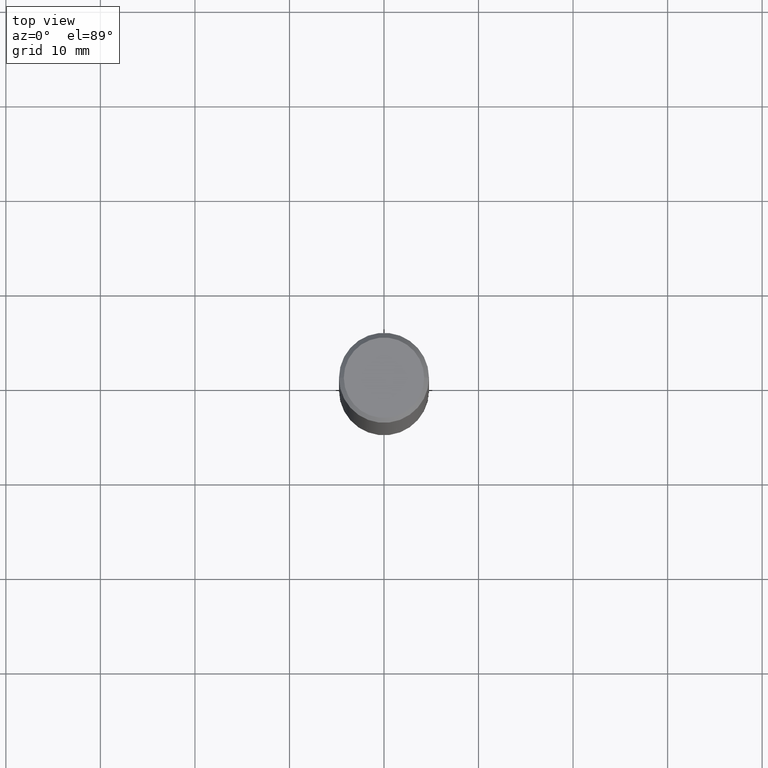
[diagram: clean part render]
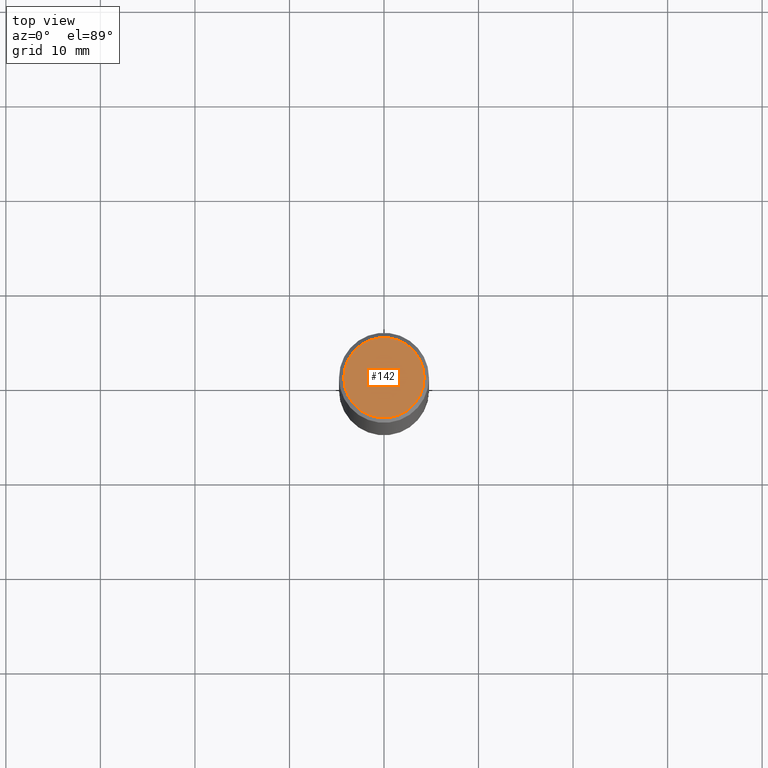
[diagram: same view with one face highlighted and labeled with its STEP entity id]
A machine part, top view. The second image highlights one B-rep face of the part: STEP entity #142.
In plain terms, the highlighted planar face has unit normal (0, -0, -1).
Its self-contained STEP definition (entity closure, byte-faithful):
#12 = DIRECTION ( 'NONE',  ( 1.000000000000000000, -6.982962677686265922E-15, 4.875936752492899929E-29 ) ) ;
#26 = CARTESIAN_POINT ( 'NONE',  ( -1.043851414335219820E-46, 1.490343170380447200E-32, 4.268512490100411279E-18 ) ) ;
#27 = DIRECTION ( 'NONE',  ( 1.000000000000000000, -6.982962677686265922E-15, 4.875936752492899929E-29 ) ) ;
#31 = VERTEX_POINT ( 'NONE', #328 ) ;
#44 = EDGE_LOOP ( 'NONE', ( #248, #137 ) ) ;
#67 = VERTEX_POINT ( 'NONE', #208 ) ;
#71 = DIRECTION ( 'NONE',  ( -2.445468806185136597E-29, 3.491481338843145583E-15, 1.000000000000000000 ) ) ;
#91 = DIRECTION ( 'NONE',  ( 2.438088387897960049E-29, -3.491481338843145188E-15, -1.000000000000000000 ) ) ;
#102 = CIRCLE ( 'NONE', #342, 0.1674999999999997602 ) ;
#108 = AXIS2_PLACEMENT_3D ( 'NONE', #26, #337, #27 ) ;
#120 = CARTESIAN_POINT ( 'NONE',  ( -1.043851414335219820E-46, 1.490343170380447200E-32, 4.268512490100411279E-18 ) ) ;
#125 = EDGE_CURVE ( 'NONE', #31, #67, #165, .T. ) ;
#137 = ORIENTED_EDGE ( 'NONE', *, *, #192, .T. ) ;
#142 = ADVANCED_FACE ( 'NONE', ( #201 ), #338, .F. ) ;
#165 = CIRCLE ( 'NONE', #108, 0.1674999999999997602 ) ;
#192 = EDGE_CURVE ( 'NONE', #67, #31, #102, .T. ) ;
#201 = FACE_OUTER_BOUND ( 'NONE', #44, .T. ) ;
#208 = CARTESIAN_POINT ( 'NONE',  ( 0.1674999999999997602, -1.252653207992876711E-15, 4.268512490108880748E-18 ) ) ;
#234 = CARTESIAN_POINT ( 'NONE',  ( 1.169646248512447820E-15, 0.1674999999999997602, -5.826888680111757675E-16 ) ) ;
#248 = ORIENTED_EDGE ( 'NONE', *, *, #125, .T. ) ;
#254 = AXIS2_PLACEMENT_3D ( 'NONE', #234, #91, #262 ) ;
#262 = DIRECTION ( 'NONE',  ( -1.000000000000000000, 6.982962677686265922E-15, -4.876176775795935793E-29 ) ) ;
#328 = CARTESIAN_POINT ( 'NONE',  ( -0.1674999999999997602, 1.204561061900878878E-15, 4.268512490092109750E-18 ) ) ;
#337 = DIRECTION ( 'NONE',  ( -2.445468806185136597E-29, 3.491481338843145583E-15, 1.000000000000000000 ) ) ;
#338 = PLANE ( 'NONE',  #254 ) ;
#342 = AXIS2_PLACEMENT_3D ( 'NONE', #120, #71, #12 ) ;